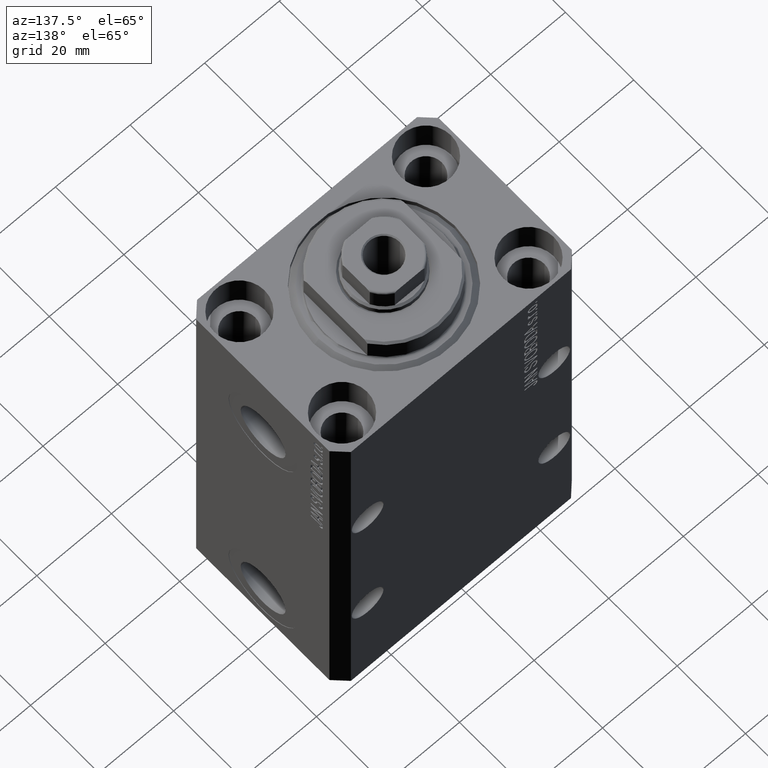
[diagram: clean part render]
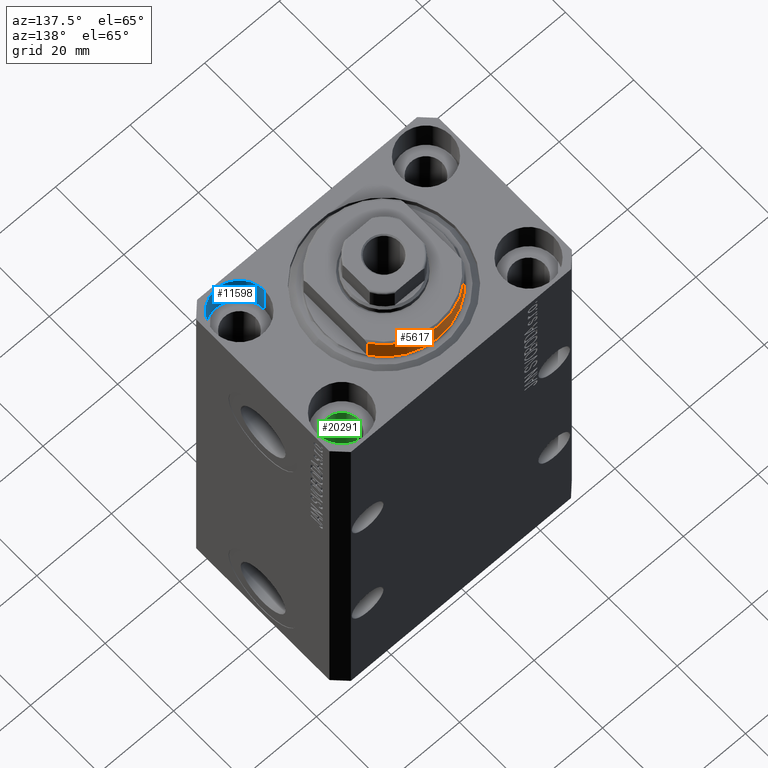
[diagram: same view with three faces highlighted in distinct colors, each labeled with its STEP entity id]
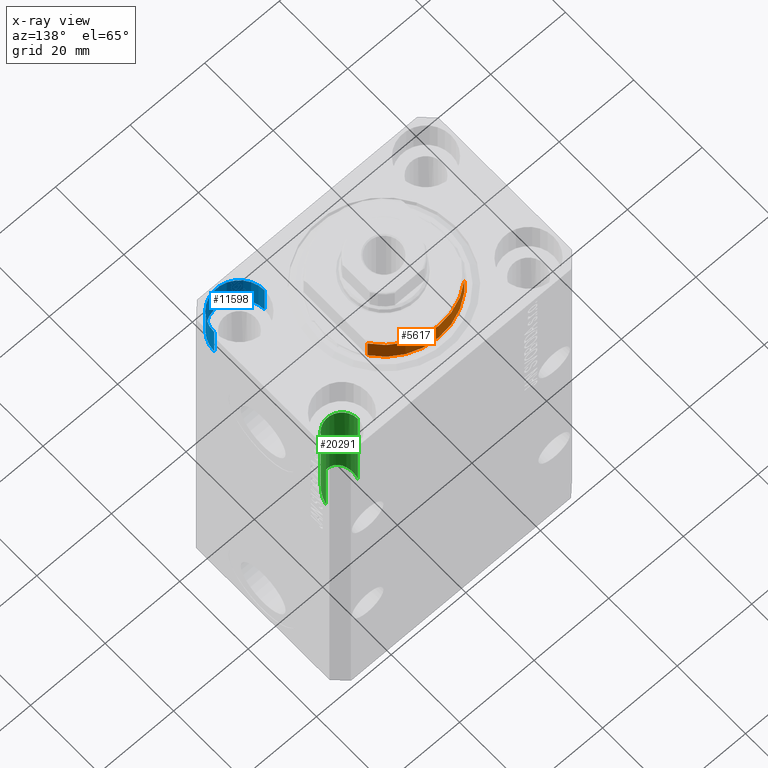
[diagram: x-ray of the same camera — body ghosted, the three highlighted faces saturated]
A machine part, auxiliary view with three faces highlighted in distinct colors.
The next image is the same camera in x-ray (body ghosted, the three faces saturated) — at least one of them is partly hidden behind the body in this view.
Their STEP definitions:

[orange] entity #5617 — the highlighted cylindrical surface (partial cylindrical patch) has radius 16 mm, axis along (0, 0, -1).
#603 = VERTEX_POINT ( 'NONE', #8377 ) ;
#1625 = EDGE_CURVE ( 'NONE', #37974, #44921, #39736, .T. ) ;
#2265 = CARTESIAN_POINT ( 'NONE',  ( -13.00000000000000000, 9.327379053088916905, -6.000000000000014211 ) ) ;
#2383 = EDGE_CURVE ( 'NONE', #8792, #603, #6647, .T. ) ;
#2949 = DIRECTION ( 'NONE',  ( 1.000000000000000000, 0.000000000000000000, 0.000000000000000000 ) ) ;
#3990 = VECTOR ( 'NONE', #34606, 1000.000000000000000 ) ;
#4534 = ORIENTED_EDGE ( 'NONE', *, *, #2383, .F. ) ;
#5617 = ADVANCED_FACE ( 'NONE', ( #20431 ), #31348, .T. ) ;
#6647 = LINE ( 'NONE', #17788, #3990 ) ;
#6924 = EDGE_LOOP ( 'NONE', ( #4534, #28265, #39932, #23049 ) ) ;
#8377 = CARTESIAN_POINT ( 'NONE',  ( 13.00000000000000000, 9.327379053088815652, -0.4999999999999995559 ) ) ;
#8792 = VERTEX_POINT ( 'NONE', #24996 ) ;
#9079 = VECTOR ( 'NONE', #18801, 1000.000000000000000 ) ;
#13733 = CIRCLE ( 'NONE', #20246, 16.00000000000000000 ) ;
#16155 = DIRECTION ( 'NONE',  ( 0.000000000000000000, 0.000000000000000000, 1.000000000000000000 ) ) ;
#17788 = CARTESIAN_POINT ( 'NONE',  ( 13.00000000000000000, 9.327379053088813876, -6.500000000000000000 ) ) ;
#18344 = CARTESIAN_POINT ( 'NONE',  ( -13.00000000000000000, 9.327379053088813876, -6.500000000000000000 ) ) ;
#18801 = DIRECTION ( 'NONE',  ( -0.000000000000000000, -0.000000000000000000, 1.000000000000000000 ) ) ;
#19615 = DIRECTION ( 'NONE',  ( 1.000000000000000000, -8.881784197001252323E-16, 0.000000000000000000 ) ) ;
#20027 = EDGE_CURVE ( 'NONE', #8792, #37974, #13733, .T. ) ;
#20246 = AXIS2_PLACEMENT_3D ( 'NONE', #26394, #16155, #30030 ) ;
#20431 = FACE_OUTER_BOUND ( 'NONE', #6924, .T. ) ;
#23020 = DIRECTION ( 'NONE',  ( -0.000000000000000000, -0.000000000000000000, -1.000000000000000000 ) ) ;
#23049 = ORIENTED_EDGE ( 'NONE', *, *, #28352, .T. ) ;
#24996 = CARTESIAN_POINT ( 'NONE',  ( 13.00000000000000000, 9.327379053088916905, -6.000000000000014211 ) ) ;
#25892 = CARTESIAN_POINT ( 'NONE',  ( -13.00000000000000000, 9.327379053088815652, -0.4999999999999995559 ) ) ;
#26394 = CARTESIAN_POINT ( 'NONE',  ( 0.000000000000000000, 0.000000000000000000, -6.000000000000023981 ) ) ;
#28265 = ORIENTED_EDGE ( 'NONE', *, *, #20027, .T. ) ;
#28352 = EDGE_CURVE ( 'NONE', #44921, #603, #31378, .T. ) ;
#29409 = AXIS2_PLACEMENT_3D ( 'NONE', #44806, #42054, #2949 ) ;
#30030 = DIRECTION ( 'NONE',  ( -1.000000000000000000, 0.000000000000000000, 0.000000000000000000 ) ) ;
#31348 = CYLINDRICAL_SURFACE ( 'NONE', #29409, 16.00000000000000000 ) ;
#31378 = CIRCLE ( 'NONE', #33541, 16.00000000000000000 ) ;
#33541 = AXIS2_PLACEMENT_3D ( 'NONE', #40333, #23020, #19615 ) ;
#34606 = DIRECTION ( 'NONE',  ( -0.000000000000000000, -0.000000000000000000, 1.000000000000000000 ) ) ;
#37974 = VERTEX_POINT ( 'NONE', #2265 ) ;
#39736 = LINE ( 'NONE', #18344, #9079 ) ;
#39932 = ORIENTED_EDGE ( 'NONE', *, *, #1625, .T. ) ;
#40333 = CARTESIAN_POINT ( 'NONE',  ( 0.000000000000000000, 0.000000000000000000, -0.4999999999999995559 ) ) ;
#42054 = DIRECTION ( 'NONE',  ( -0.000000000000000000, -0.000000000000000000, 1.000000000000000000 ) ) ;
#44806 = CARTESIAN_POINT ( 'NONE',  ( 0.000000000000000000, 0.000000000000000000, -6.500000000000000000 ) ) ;
#44921 = VERTEX_POINT ( 'NONE', #25892 ) ;

[blue] entity #11598 — the highlighted cylindrical surface (edge-blend (fillet) strip) has radius 6.75 mm, axis along (0, 0, 1).
#329 = VERTEX_POINT ( 'NONE', #5692 ) ;
#3236 = LINE ( 'NONE', #41901, #37791 ) ;
#5691 = AXIS2_PLACEMENT_3D ( 'NONE', #22946, #12955, #40707 ) ;
#5692 = CARTESIAN_POINT ( 'NONE',  ( 18.25000000002253842, -15.00000000000000000, -9.000000000000000000 ) ) ;
#6775 = CARTESIAN_POINT ( 'NONE',  ( 31.74999999997746869, -15.00000000000000000, -9.000000000000000000 ) ) ;
#7293 = DIRECTION ( 'NONE',  ( 1.000000000000000000, 0.000000000000000000, 0.000000000000000000 ) ) ;
#7902 = ORIENTED_EDGE ( 'NONE', *, *, #17217, .T. ) ;
#8991 = VECTOR ( 'NONE', #43910, 1000.000000000000000 ) ;
#11388 = CARTESIAN_POINT ( 'NONE',  ( 25.00000000000000355, -15.00000000000000000, -9.000000000000000000 ) ) ;
#11598 = ADVANCED_FACE ( 'NONE', ( #31846 ), #25247, .F. ) ;
#12955 = DIRECTION ( 'NONE',  ( 0.000000000000000000, 0.000000000000000000, 1.000000000000000000 ) ) ;
#15071 = DIRECTION ( 'NONE',  ( 1.000000000000000000, 0.000000000000000000, 0.000000000000000000 ) ) ;
#15295 = CARTESIAN_POINT ( 'NONE',  ( 25.00000000000000355, -15.00000000000000000, -9.000000000000000000 ) ) ;
#15333 = ORIENTED_EDGE ( 'NONE', *, *, #23257, .T. ) ;
#16943 = AXIS2_PLACEMENT_3D ( 'NONE', #15295, #21185, #15071 ) ;
#17217 = EDGE_CURVE ( 'NONE', #34636, #40733, #30388, .T. ) ;
#17532 = DIRECTION ( 'NONE',  ( -0.000000000000000000, -0.000000000000000000, 1.000000000000000000 ) ) ;
#18429 = VERTEX_POINT ( 'NONE', #6775 ) ;
#21185 = DIRECTION ( 'NONE',  ( 0.000000000000000000, 0.000000000000000000, 1.000000000000000000 ) ) ;
#21561 = AXIS2_PLACEMENT_3D ( 'NONE', #11388, #17532, #7293 ) ;
#21702 = CARTESIAN_POINT ( 'NONE',  ( 18.25000000002253842, -15.00000000000000000, 0.000000000000000000 ) ) ;
#22946 = CARTESIAN_POINT ( 'NONE',  ( 25.00000000000000355, -15.00000000000000000, 0.000000000000000000 ) ) ;
#22961 = CARTESIAN_POINT ( 'NONE',  ( 31.74999999997746869, -15.00000000000000000, -9.000000000000000000 ) ) ;
#23257 = EDGE_CURVE ( 'NONE', #329, #34636, #3236, .T. ) ;
#25247 = CYLINDRICAL_SURFACE ( 'NONE', #21561, 6.749999999977465137 ) ;
#26090 = ORIENTED_EDGE ( 'NONE', *, *, #35483, .F. ) ;
#26897 = EDGE_LOOP ( 'NONE', ( #41252, #15333, #7902, #26090 ) ) ;
#30040 = EDGE_CURVE ( 'NONE', #329, #18429, #36551, .T. ) ;
#30388 = CIRCLE ( 'NONE', #5691, 6.749999999977465137 ) ;
#31779 = CARTESIAN_POINT ( 'NONE',  ( 31.74999999997746869, -15.00000000000000000, 0.000000000000000000 ) ) ;
#31846 = FACE_OUTER_BOUND ( 'NONE', #26897, .T. ) ;
#34636 = VERTEX_POINT ( 'NONE', #21702 ) ;
#35483 = EDGE_CURVE ( 'NONE', #18429, #40733, #40276, .T. ) ;
#36551 = CIRCLE ( 'NONE', #16943, 6.749999999977465137 ) ;
#37791 = VECTOR ( 'NONE', #41675, 1000.000000000000000 ) ;
#40276 = LINE ( 'NONE', #22961, #8991 ) ;
#40707 = DIRECTION ( 'NONE',  ( 1.000000000000000000, 0.000000000000000000, 0.000000000000000000 ) ) ;
#40733 = VERTEX_POINT ( 'NONE', #31779 ) ;
#41252 = ORIENTED_EDGE ( 'NONE', *, *, #30040, .F. ) ;
#41675 = DIRECTION ( 'NONE',  ( -0.000000000000000000, -0.000000000000000000, 1.000000000000000000 ) ) ;
#41901 = CARTESIAN_POINT ( 'NONE',  ( 18.25000000002253842, -15.00000000000000000, -9.000000000000000000 ) ) ;
#43910 = DIRECTION ( 'NONE',  ( -0.000000000000000000, -0.000000000000000000, 1.000000000000000000 ) ) ;

[green] entity #20291 — the highlighted cylindrical surface (edge-blend (fillet) strip) has radius 4.25 mm, axis along (0, 0, 1).
#1014 = EDGE_CURVE ( 'NONE', #21808, #7235, #42568, .T. ) ;
#3944 = ORIENTED_EDGE ( 'NONE', *, *, #35022, .T. ) ;
#4009 = CARTESIAN_POINT ( 'NONE',  ( 20.75000000002625100, 15.00000000000000711, -36.99999999999999289 ) ) ;
#6491 = AXIS2_PLACEMENT_3D ( 'NONE', #17960, #24983, #31815 ) ;
#7235 = VERTEX_POINT ( 'NONE', #32147 ) ;
#10398 = EDGE_CURVE ( 'NONE', #17369, #7235, #37528, .T. ) ;
#10922 = EDGE_LOOP ( 'NONE', ( #3944, #34270, #26016, #44659 ) ) ;
#11171 =( BOUNDED_CURVE ( )  B_SPLINE_CURVE ( 3, ( #28559, #15155, #31966, #4009 ),
 .UNSPECIFIED., .F., .F. ) 
 B_SPLINE_CURVE_WITH_KNOTS ( ( 4, 4 ),
 ( 4.712388980384689674, 7.853981633974482790 ),
 .UNSPECIFIED. ) 
 CURVE ( )  GEOMETRIC_REPRESENTATION_ITEM ( )  RATIONAL_B_SPLINE_CURVE ( ( 1.000000000000000000, 0.3333333333333333703, 0.3333333333333333703, 1.000000000000000000 ) ) 
 REPRESENTATION_ITEM ( '' )  );
#12585 = DIRECTION ( 'NONE',  ( -0.000000000000000000, -0.000000000000000000, 1.000000000000000000 ) ) ;
#15155 = CARTESIAN_POINT ( 'NONE',  ( 29.24999999997376321, 6.500000000052511773, -28.50000000005249845 ) ) ;
#16269 = CARTESIAN_POINT ( 'NONE',  ( 20.75000000002625100, 15.00000000000000711, -36.99999999999999289 ) ) ;
#17369 = VERTEX_POINT ( 'NONE', #29286 ) ;
#17960 = CARTESIAN_POINT ( 'NONE',  ( 24.99999999999999645, 15.00000000000000888, -107.0000000000000000 ) ) ;
#18189 = VECTOR ( 'NONE', #12585, 1000.000000000000000 ) ;
#18628 = FACE_OUTER_BOUND ( 'NONE', #10922, .T. ) ;
#19626 = LINE ( 'NONE', #41232, #18189 ) ;
#20291 = ADVANCED_FACE ( 'NONE', ( #18628 ), #42513, .F. ) ;
#21808 = VERTEX_POINT ( 'NONE', #23798 ) ;
#23199 = EDGE_CURVE ( 'NONE', #29047, #17369, #19626, .T. ) ;
#23798 = CARTESIAN_POINT ( 'NONE',  ( 29.24999999997375255, 15.00000000000000711, -36.99999999999999289 ) ) ;
#24983 = DIRECTION ( 'NONE',  ( -0.000000000000000000, -0.000000000000000000, 1.000000000000000000 ) ) ;
#26016 = ORIENTED_EDGE ( 'NONE', *, *, #10398, .T. ) ;
#28000 = CARTESIAN_POINT ( 'NONE',  ( 29.24999999995844746, 15.00000000000000888, -107.0000000000000000 ) ) ;
#28559 = CARTESIAN_POINT ( 'NONE',  ( 29.24999999997375255, 15.00000000000000711, -36.99999999999999289 ) ) ;
#29047 = VERTEX_POINT ( 'NONE', #16269 ) ;
#29286 = CARTESIAN_POINT ( 'NONE',  ( 20.75000000004154899, 15.00000000000000888, -9.000000000000000000 ) ) ;
#29372 = VECTOR ( 'NONE', #41895, 1000.000000000000000 ) ;
#31815 = DIRECTION ( 'NONE',  ( 1.000000000000000000, 0.000000000000000000, 0.000000000000000000 ) ) ;
#31966 = CARTESIAN_POINT ( 'NONE',  ( 20.75000000002625100, 6.500000000052509108, -28.50000000005249845 ) ) ;
#32147 = CARTESIAN_POINT ( 'NONE',  ( 29.24999999995844746, 15.00000000000000888, -9.000000000000000000 ) ) ;
#34270 = ORIENTED_EDGE ( 'NONE', *, *, #23199, .T. ) ;
#35022 = EDGE_CURVE ( 'NONE', #21808, #29047, #11171, .T. ) ;
#36483 = CARTESIAN_POINT ( 'NONE',  ( 24.99999999999999645, 15.00000000000000888, -9.000000000000000000 ) ) ;
#37528 = CIRCLE ( 'NONE', #44813, 4.249999999958450125 ) ;
#41232 = CARTESIAN_POINT ( 'NONE',  ( 20.75000000004154899, 15.00000000000000888, -107.0000000000000000 ) ) ;
#41895 = DIRECTION ( 'NONE',  ( -0.000000000000000000, -0.000000000000000000, 1.000000000000000000 ) ) ;
#42513 = CYLINDRICAL_SURFACE ( 'NONE', #6491, 4.249999999958450125 ) ;
#42568 = LINE ( 'NONE', #28000, #29372 ) ;
#43334 = DIRECTION ( 'NONE',  ( 1.000000000000000000, 0.000000000000000000, 0.000000000000000000 ) ) ;
#43770 = DIRECTION ( 'NONE',  ( 0.000000000000000000, 0.000000000000000000, 1.000000000000000000 ) ) ;
#44659 = ORIENTED_EDGE ( 'NONE', *, *, #1014, .F. ) ;
#44813 = AXIS2_PLACEMENT_3D ( 'NONE', #36483, #43770, #43334 ) ;